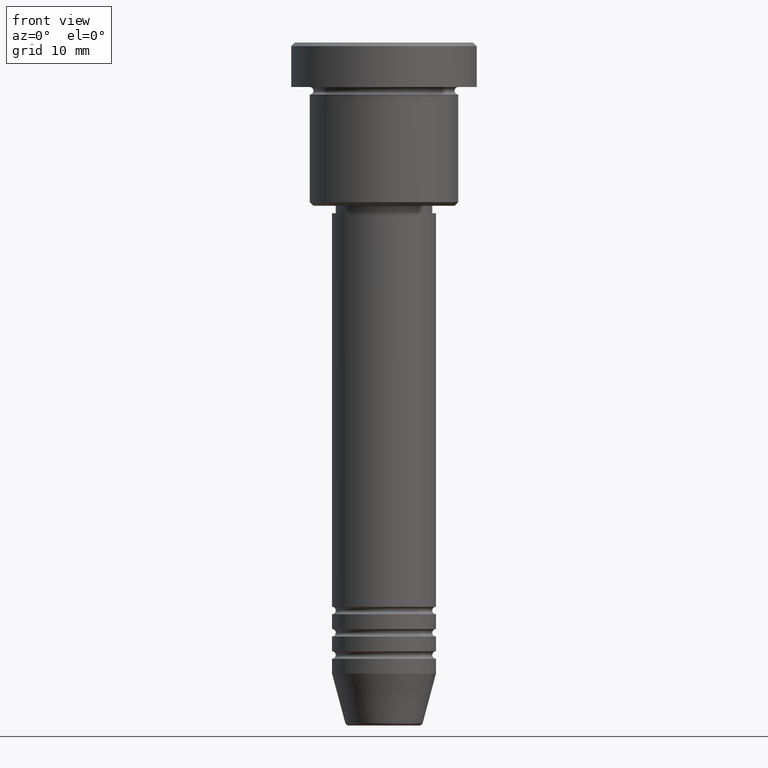
[diagram: clean part render]
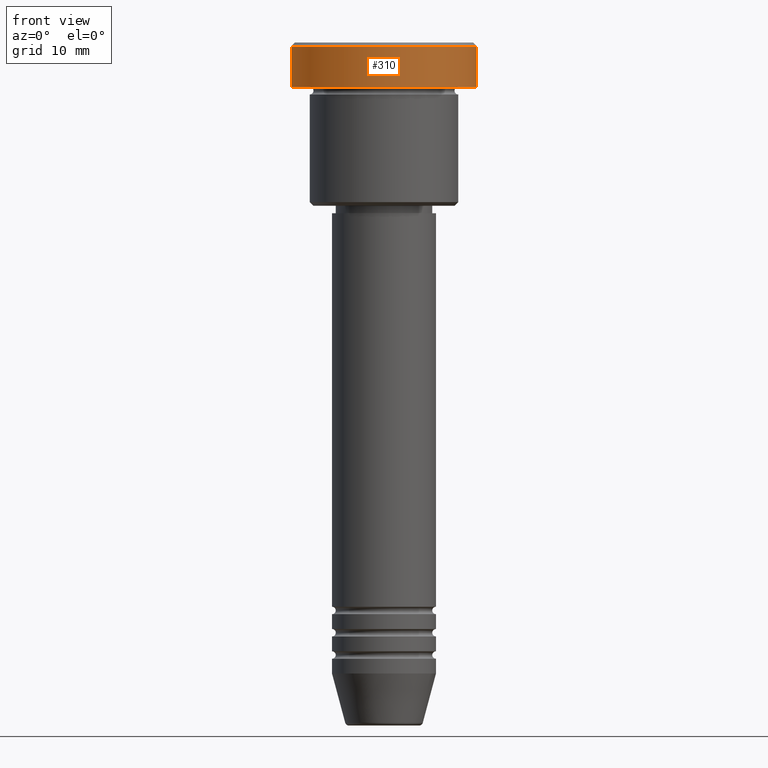
[diagram: same view with one face highlighted and labeled with its STEP entity id]
A machine part, front view. The second image highlights one B-rep face of the part: STEP entity #310.
In plain terms, the highlighted cylindrical surface (partial cylindrical patch) has radius 12.5 mm, axis along (-0, -0, 1).
Its self-contained STEP definition (entity closure, byte-faithful):
#39 = DIRECTION ( 'NONE',  ( 1.000000000000000000, 0.000000000000000000, 0.000000000000000000 ) ) ;
#109 = VERTEX_POINT ( 'NONE', #1128 ) ;
#143 = CARTESIAN_POINT ( 'NONE',  ( -12.50000000000000000, 1.530808498934191521E-15, -0.4999999999999917843 ) ) ;
#145 = EDGE_CURVE ( 'NONE', #109, #304, #532, .T. ) ;
#166 = VECTOR ( 'NONE', #897, 1000.000000000000000 ) ;
#169 = CARTESIAN_POINT ( 'NONE',  ( -12.50000000000000000, 1.530808498934191521E-15, -5.999999999999996447 ) ) ;
#178 = CIRCLE ( 'NONE', #346, 12.50000000000000000 ) ;
#254 = ORIENTED_EDGE ( 'NONE', *, *, #898, .F. ) ;
#263 = EDGE_CURVE ( 'NONE', #779, #109, #468, .T. ) ;
#304 = VERTEX_POINT ( 'NONE', #571 ) ;
#310 = ADVANCED_FACE ( 'NONE', ( #931 ), #1122, .T. ) ;
#313 = DIRECTION ( 'NONE',  ( 1.000000000000000000, 0.000000000000000000, 0.000000000000000000 ) ) ;
#346 = AXIS2_PLACEMENT_3D ( 'NONE', #506, #953, #39 ) ;
#375 = VECTOR ( 'NONE', #800, 1000.000000000000000 ) ;
#386 = DIRECTION ( 'NONE',  ( 1.000000000000000000, 0.000000000000000000, 0.000000000000000000 ) ) ;
#409 = CARTESIAN_POINT ( 'NONE',  ( 0.000000000000000000, 0.000000000000000000, 0.000000000000000000 ) ) ;
#443 = LINE ( 'NONE', #901, #166 ) ;
#468 = CIRCLE ( 'NONE', #1138, 12.50000000000000000 ) ;
#486 = ORIENTED_EDGE ( 'NONE', *, *, #145, .T. ) ;
#506 = CARTESIAN_POINT ( 'NONE',  ( 0.000000000000000000, 0.000000000000000000, -0.4999999999999917843 ) ) ;
#532 = LINE ( 'NONE', #973, #375 ) ;
#558 = AXIS2_PLACEMENT_3D ( 'NONE', #409, #764, #313 ) ;
#571 = CARTESIAN_POINT ( 'NONE',  ( 12.50000000000000000, 0.000000000000000000, -0.4999999999999917843 ) ) ;
#661 = DIRECTION ( 'NONE',  ( -0.000000000000000000, -0.000000000000000000, 1.000000000000000000 ) ) ;
#668 = CARTESIAN_POINT ( 'NONE',  ( 0.000000000000000000, 0.000000000000000000, -5.999999999999996447 ) ) ;
#714 = ORIENTED_EDGE ( 'NONE', *, *, #1073, .T. ) ;
#764 = DIRECTION ( 'NONE',  ( -0.000000000000000000, -0.000000000000000000, 1.000000000000000000 ) ) ;
#779 = VERTEX_POINT ( 'NONE', #169 ) ;
#800 = DIRECTION ( 'NONE',  ( -0.000000000000000000, -0.000000000000000000, 1.000000000000000000 ) ) ;
#866 = ORIENTED_EDGE ( 'NONE', *, *, #263, .T. ) ;
#897 = DIRECTION ( 'NONE',  ( -0.000000000000000000, -0.000000000000000000, 1.000000000000000000 ) ) ;
#898 = EDGE_CURVE ( 'NONE', #779, #1050, #443, .T. ) ;
#901 = CARTESIAN_POINT ( 'NONE',  ( -12.50000000000000000, 1.530808498934191521E-15, 0.000000000000000000 ) ) ;
#931 = FACE_OUTER_BOUND ( 'NONE', #1032, .T. ) ;
#953 = DIRECTION ( 'NONE',  ( 0.000000000000000000, 0.000000000000000000, -1.000000000000000000 ) ) ;
#973 = CARTESIAN_POINT ( 'NONE',  ( 12.50000000000000000, 0.000000000000000000, 0.000000000000000000 ) ) ;
#1032 = EDGE_LOOP ( 'NONE', ( #254, #866, #486, #714 ) ) ;
#1050 = VERTEX_POINT ( 'NONE', #143 ) ;
#1073 = EDGE_CURVE ( 'NONE', #304, #1050, #178, .T. ) ;
#1122 = CYLINDRICAL_SURFACE ( 'NONE', #558, 12.50000000000000000 ) ;
#1128 = CARTESIAN_POINT ( 'NONE',  ( 12.50000000000000000, 0.000000000000000000, -5.999999999999996447 ) ) ;
#1138 = AXIS2_PLACEMENT_3D ( 'NONE', #668, #661, #386 ) ;